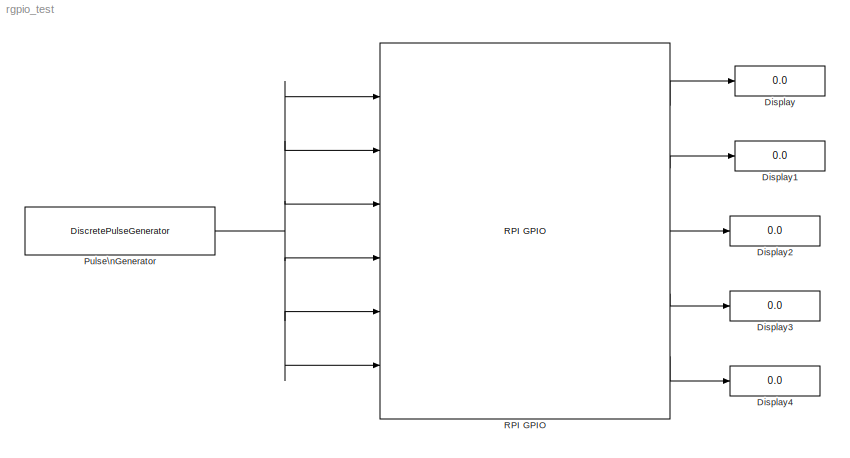
MODEL rgpio_test
KIND model
BLOCK [Display] Display
  Decimation = 1
  Ports = [1]
  SID = 2
BLOCK [Display] Display1
  Decimation = 1
  Ports = [1]
  SID = 6
BLOCK [Display] Display2
  Decimation = 1
  Ports = [1]
  SID = 7
BLOCK [Display] Display3
  Decimation = 1
  Ports = [1]
  SID = 8
BLOCK [Display] Display4
  Decimation = 1
  Ports = [1]
  SID = 9
BLOCK [DiscretePulseGenerator] Pulse\nGenerator
  Period = 100
  Ports = [0, 1]
  PulseWidth = 50
  SID = 3
  SampleTime = 0.001
BLOCK [Reference] RPI GPIO  REF=rpi_blkst/RPI GPIO  (lib defined in mdl_5f9edbe601a8, slx_830431f926a7)
  Ports = [6, 5]
  SID = 1
  SourceBlock = rpi_blkst/RPI GPIO
  SourceProductName = RPI Blockset
  SourceType = RPI GPIO
  rpi_mask_Ts = 0.001
NET Pulse\nGenerator:1 -> RPI GPIO:1, RPI GPIO:2, RPI GPIO:3, RPI GPIO:4, RPI GPIO:5, RPI GPIO:6
LINE RPI GPIO:1 -> Display:1
LINE RPI GPIO:2 -> Display1:1
LINE RPI GPIO:3 -> Display2:1
LINE RPI GPIO:4 -> Display3:1
LINE RPI GPIO:5 -> Display4:1
note: NET lines group one-source signal fan-out (src -> all destinations, sorted); 1:1 wires keep LINE
